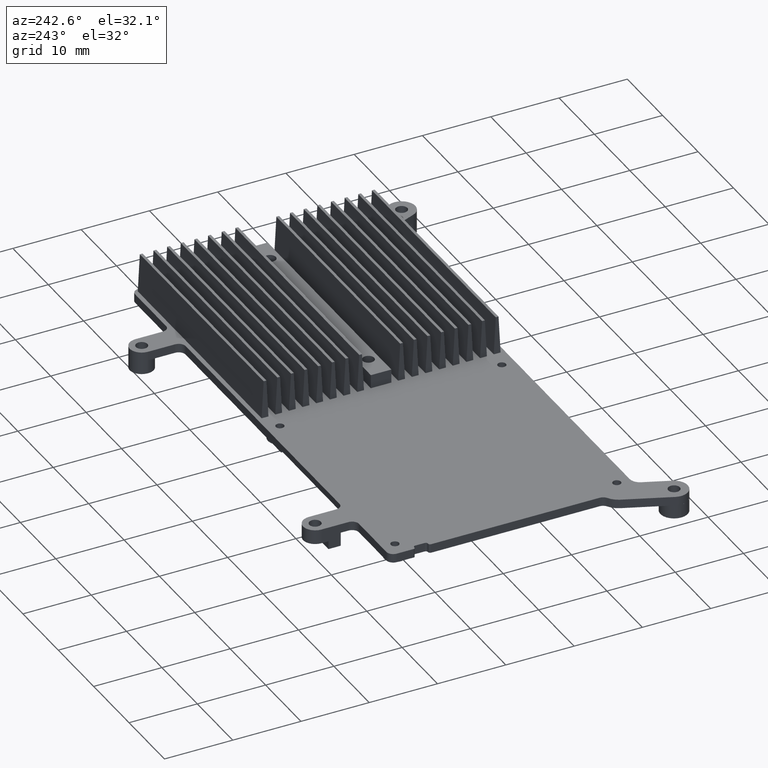
[diagram: clean part render]
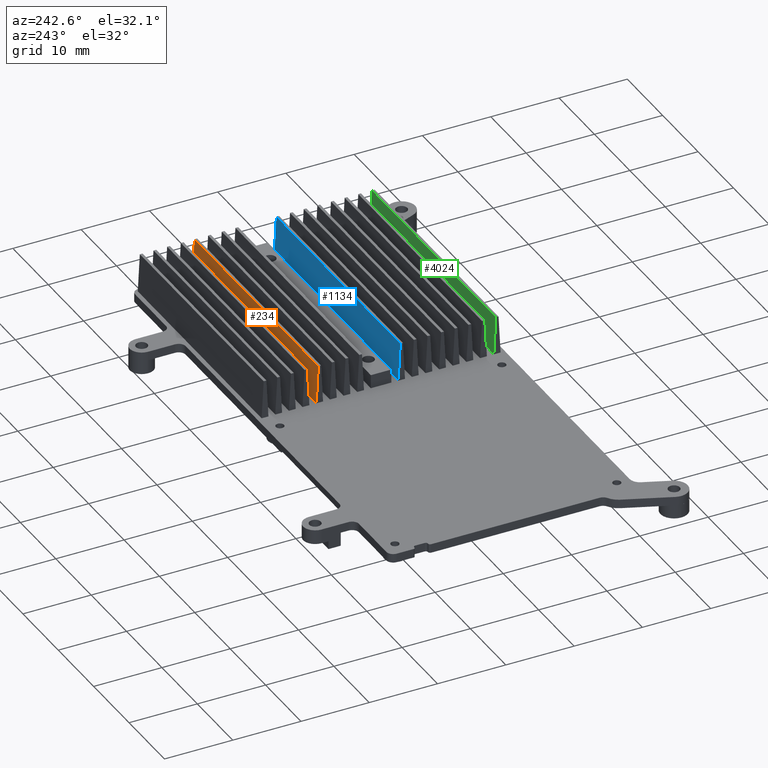
[diagram: same view with three faces highlighted in distinct colors, each labeled with its STEP entity id]
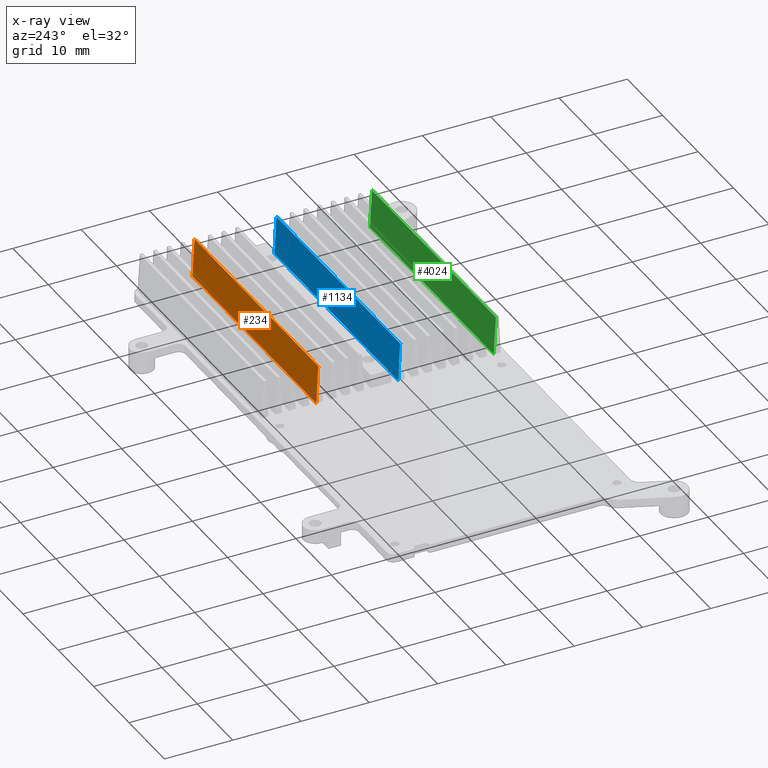
[diagram: x-ray of the same camera — body ghosted, the three highlighted faces saturated]
A machine part, auxiliary view with three faces highlighted in distinct colors.
The next image is the same camera in x-ray (body ghosted, the three faces saturated) — at least one of them is partly hidden behind the body in this view.
Their STEP definitions:

[orange] entity #234 — the highlighted planar face has unit normal (0, 0.9986, 0.0535).
#116 = PLANE ( 'NONE',  #2036 ) ;
#179 = CARTESIAN_POINT ( 'NONE',  ( 36.49940000000000100, 5.887719902459991800, -6.099999999999999600 ) ) ;
#234 = ADVANCED_FACE ( 'NONE', ( #3065 ), #116, .T. ) ;
#713 = DIRECTION ( 'NONE',  ( 0.0000000000000000000, -0.05349472137160941200, 0.9985681322700888900 ) ) ;
#722 = DIRECTION ( 'NONE',  ( 1.000000000000000000, 0.0000000000000000000, 0.0000000000000000000 ) ) ;
#862 = VECTOR ( 'NONE', #5511, 1000.000000000000100 ) ;
#969 = LINE ( 'NONE', #2581, #1634 ) ;
#998 = LINE ( 'NONE', #2120, #862 ) ;
#1005 = LINE ( 'NONE', #1148, #3931 ) ;
#1148 = CARTESIAN_POINT ( 'NONE',  ( 51.58500000000000100, 5.887719902459998900, -6.099999999999999600 ) ) ;
#1154 = CARTESIAN_POINT ( 'NONE',  ( 1.500599999999999500, 5.887719902459992700, -6.099999999999999600 ) ) ;
#1304 = ORIENTED_EDGE ( 'NONE', *, *, #1947, .T. ) ;
#1583 = VERTEX_POINT ( 'NONE', #179 ) ;
#1634 = VECTOR ( 'NONE', #3451, 1000.000000000000000 ) ;
#1743 = ORIENTED_EDGE ( 'NONE', *, *, #4475, .T. ) ;
#1947 = EDGE_CURVE ( 'NONE', #5244, #3544, #969, .T. ) ;
#2008 = CARTESIAN_POINT ( 'NONE',  ( 1.500599999999999900, 5.587719902459999900, -0.5000000000000000000 ) ) ;
#2036 = AXIS2_PLACEMENT_3D ( 'NONE', #3098, #3428, #5163 ) ;
#2120 = CARTESIAN_POINT ( 'NONE',  ( 36.49940000000000100, 5.587719902459999900, -0.5000000000000000000 ) ) ;
#2176 = EDGE_LOOP ( 'NONE', ( #2422, #3501, #1743, #1304 ) ) ;
#2422 = ORIENTED_EDGE ( 'NONE', *, *, #4567, .T. ) ;
#2581 = CARTESIAN_POINT ( 'NONE',  ( 1.000599999999999900, 5.587719902459999900, -0.5000000000000000000 ) ) ;
#3065 = FACE_OUTER_BOUND ( 'NONE', #2176, .T. ) ;
#3098 = CARTESIAN_POINT ( 'NONE',  ( 1.000599999999999900, 5.587719902459999900, -0.5000000000000000000 ) ) ;
#3428 = DIRECTION ( 'NONE',  ( 0.0000000000000000000, 0.9985681322700890000, 0.05349472137160941900 ) ) ;
#3451 = DIRECTION ( 'NONE',  ( 1.000000000000000000, 0.0000000000000000000, -0.0000000000000000000 ) ) ;
#3501 = ORIENTED_EDGE ( 'NONE', *, *, #4192, .F. ) ;
#3544 = VERTEX_POINT ( 'NONE', #4414 ) ;
#3583 = LINE ( 'NONE', #2008, #4053 ) ;
#3931 = VECTOR ( 'NONE', #722, 1000.000000000000000 ) ;
#4053 = VECTOR ( 'NONE', #713, 1000.000000000000100 ) ;
#4154 = CARTESIAN_POINT ( 'NONE',  ( 1.500600000000000200, 5.587719902459999900, -0.5000000000000000000 ) ) ;
#4192 = EDGE_CURVE ( 'NONE', #5258, #1583, #1005, .T. ) ;
#4414 = CARTESIAN_POINT ( 'NONE',  ( 36.49940000000000100, 5.587719902460000800, -0.5000000000000001100 ) ) ;
#4475 = EDGE_CURVE ( 'NONE', #5258, #5244, #3583, .T. ) ;
#4567 = EDGE_CURVE ( 'NONE', #3544, #1583, #998, .T. ) ;
#5163 = DIRECTION ( 'NONE',  ( 0.0000000000000000000, -0.05349472137160941200, 0.9985681322700888900 ) ) ;
#5244 = VERTEX_POINT ( 'NONE', #4154 ) ;
#5258 = VERTEX_POINT ( 'NONE', #1154 ) ;
#5511 = DIRECTION ( 'NONE',  ( -0.0000000000000000000, 0.05349472137160941200, -0.9985681322700888900 ) ) ;

[blue] entity #1134 — the highlighted planar face has unit normal (0, -0.9986, -0.0535).
#26 = CARTESIAN_POINT ( 'NONE',  ( 51.58500000000000100, -6.112280097539998500, -6.099999999999999600 ) ) ;
#303 = EDGE_CURVE ( 'NONE', #1627, #3840, #3452, .T. ) ;
#312 = PLANE ( 'NONE',  #5202 ) ;
#528 = LINE ( 'NONE', #1816, #1131 ) ;
#982 = DIRECTION ( 'NONE',  ( -0.0000000000000000000, -0.05349472137160941200, 0.9985681322700888900 ) ) ;
#1048 = VERTEX_POINT ( 'NONE', #2426 ) ;
#1131 = VECTOR ( 'NONE', #982, 1000.000000000000100 ) ;
#1134 = ADVANCED_FACE ( 'NONE', ( #3116 ), #312, .F. ) ;
#1185 = CARTESIAN_POINT ( 'NONE',  ( 1.000599999999999900, -6.112280097540001100, -6.099999999999999600 ) ) ;
#1250 = EDGE_CURVE ( 'NONE', #1048, #1627, #3391, .T. ) ;
#1277 = VECTOR ( 'NONE', #3001, 1000.000000000000000 ) ;
#1627 = VERTEX_POINT ( 'NONE', #3606 ) ;
#1816 = CARTESIAN_POINT ( 'NONE',  ( 36.49940000000000100, -6.112280097540001100, -6.099999999999999600 ) ) ;
#1866 = DIRECTION ( 'NONE',  ( 0.0000000000000000000, 0.05349472137160941200, -0.9985681322700888900 ) ) ;
#1948 = ORIENTED_EDGE ( 'NONE', *, *, #1250, .F. ) ;
#2062 = VECTOR ( 'NONE', #2191, 1000.000000000000000 ) ;
#2191 = DIRECTION ( 'NONE',  ( -1.000000000000000000, 0.0000000000000000000, -0.0000000000000000000 ) ) ;
#2229 = VERTEX_POINT ( 'NONE', #4090 ) ;
#2426 = CARTESIAN_POINT ( 'NONE',  ( 36.49940000000000100, -6.412280097539990300, -0.4999999999999990600 ) ) ;
#2537 = LINE ( 'NONE', #26, #1277 ) ;
#2720 = CARTESIAN_POINT ( 'NONE',  ( 1.500599999999999900, -6.112280097540001100, -6.099999999999999600 ) ) ;
#2926 = VECTOR ( 'NONE', #1866, 1000.000000000000100 ) ;
#2964 = EDGE_LOOP ( 'NONE', ( #1948, #3696, #3288, #4985 ) ) ;
#2981 = CARTESIAN_POINT ( 'NONE',  ( 1.500599999999998200, -6.112280097539999300, -6.099999999999999600 ) ) ;
#3001 = DIRECTION ( 'NONE',  ( 1.000000000000000000, 0.0000000000000000000, 0.0000000000000000000 ) ) ;
#3116 = FACE_OUTER_BOUND ( 'NONE', #2964, .T. ) ;
#3288 = ORIENTED_EDGE ( 'NONE', *, *, #3845, .F. ) ;
#3391 = LINE ( 'NONE', #5165, #2062 ) ;
#3452 = LINE ( 'NONE', #2720, #2926 ) ;
#3606 = CARTESIAN_POINT ( 'NONE',  ( 1.500600000000000200, -6.412280097539992100, -0.4999999999999988300 ) ) ;
#3678 = DIRECTION ( 'NONE',  ( 0.0000000000000000000, 0.05349472137160941200, -0.9985681322700888900 ) ) ;
#3696 = ORIENTED_EDGE ( 'NONE', *, *, #4856, .F. ) ;
#3840 = VERTEX_POINT ( 'NONE', #2981 ) ;
#3845 = EDGE_CURVE ( 'NONE', #3840, #2229, #2537, .T. ) ;
#4090 = CARTESIAN_POINT ( 'NONE',  ( 36.49940000000000100, -6.112280097539999300, -6.099999999999999600 ) ) ;
#4856 = EDGE_CURVE ( 'NONE', #2229, #1048, #528, .T. ) ;
#4985 = ORIENTED_EDGE ( 'NONE', *, *, #303, .F. ) ;
#5165 = CARTESIAN_POINT ( 'NONE',  ( 1.000599999999999900, -6.412280097539986700, -0.4999999999999987200 ) ) ;
#5202 = AXIS2_PLACEMENT_3D ( 'NONE', #1185, #5332, #3678 ) ;
#5332 = DIRECTION ( 'NONE',  ( 0.0000000000000000000, -0.9985681322700890000, -0.05349472137160941900 ) ) ;

[green] entity #4024 — the highlighted planar face has unit normal (0, -0.9986, -0.0535).
#165 = DIRECTION ( 'NONE',  ( 0.0000000000000000000, 0.05349472137160941200, -0.9985681322700888900 ) ) ;
#865 = CARTESIAN_POINT ( 'NONE',  ( 1.500600000000000200, -20.41228009753998800, -0.4999999999999990600 ) ) ;
#874 = VECTOR ( 'NONE', #2560, 1000.000000000000100 ) ;
#962 = CARTESIAN_POINT ( 'NONE',  ( 51.58500000000000100, -20.11228009753999800, -6.099999999999999600 ) ) ;
#1201 = CARTESIAN_POINT ( 'NONE',  ( 36.49940000000000100, -20.41228009753998400, -0.4999999999999988300 ) ) ;
#1270 = VECTOR ( 'NONE', #2207, 1000.000000000000000 ) ;
#1361 = VECTOR ( 'NONE', #3792, 1000.000000000000000 ) ;
#1410 = CARTESIAN_POINT ( 'NONE',  ( 1.000599999999999900, -20.11228009754000100, -6.099999999999999600 ) ) ;
#1474 = LINE ( 'NONE', #3588, #4708 ) ;
#1868 = ORIENTED_EDGE ( 'NONE', *, *, #2721, .F. ) ;
#1961 = ORIENTED_EDGE ( 'NONE', *, *, #4929, .F. ) ;
#2207 = DIRECTION ( 'NONE',  ( 1.000000000000000000, 0.0000000000000000000, 0.0000000000000000000 ) ) ;
#2400 = LINE ( 'NONE', #962, #1270 ) ;
#2560 = DIRECTION ( 'NONE',  ( -0.0000000000000000000, -0.05349472137160941200, 0.9985681322700888900 ) ) ;
#2599 = EDGE_LOOP ( 'NONE', ( #1868, #4552, #2838, #1961 ) ) ;
#2721 = EDGE_CURVE ( 'NONE', #3825, #3377, #4932, .T. ) ;
#2771 = VERTEX_POINT ( 'NONE', #4246 ) ;
#2838 = ORIENTED_EDGE ( 'NONE', *, *, #3994, .F. ) ;
#3377 = VERTEX_POINT ( 'NONE', #865 ) ;
#3588 = CARTESIAN_POINT ( 'NONE',  ( 1.500599999999999900, -20.11228009754000100, -6.099999999999999600 ) ) ;
#3792 = DIRECTION ( 'NONE',  ( -1.000000000000000000, 0.0000000000000000000, -0.0000000000000000000 ) ) ;
#3825 = VERTEX_POINT ( 'NONE', #1201 ) ;
#3875 = EDGE_CURVE ( 'NONE', #2771, #3825, #4517, .T. ) ;
#3994 = EDGE_CURVE ( 'NONE', #4930, #2771, #2400, .T. ) ;
#4024 = ADVANCED_FACE ( 'NONE', ( #5245 ), #5183, .F. ) ;
#4230 = CARTESIAN_POINT ( 'NONE',  ( 1.000599999999999900, -20.41228009753998400, -0.4999999999999987200 ) ) ;
#4246 = CARTESIAN_POINT ( 'NONE',  ( 36.49940000000000100, -20.11228009754000100, -6.099999999999999600 ) ) ;
#4517 = LINE ( 'NONE', #5029, #874 ) ;
#4552 = ORIENTED_EDGE ( 'NONE', *, *, #3875, .F. ) ;
#4702 = DIRECTION ( 'NONE',  ( 0.0000000000000000000, -0.9985681322700890000, -0.05349472137160941900 ) ) ;
#4708 = VECTOR ( 'NONE', #165, 1000.000000000000100 ) ;
#4903 = CARTESIAN_POINT ( 'NONE',  ( 1.500599999999998200, -20.11228009754000100, -6.099999999999999600 ) ) ;
#4929 = EDGE_CURVE ( 'NONE', #3377, #4930, #1474, .T. ) ;
#4930 = VERTEX_POINT ( 'NONE', #4903 ) ;
#4932 = LINE ( 'NONE', #4230, #1361 ) ;
#5029 = CARTESIAN_POINT ( 'NONE',  ( 36.49940000000000100, -20.11228009754000100, -6.099999999999999600 ) ) ;
#5145 = AXIS2_PLACEMENT_3D ( 'NONE', #1410, #4702, #5207 ) ;
#5183 = PLANE ( 'NONE',  #5145 ) ;
#5207 = DIRECTION ( 'NONE',  ( 0.0000000000000000000, 0.05349472137160941200, -0.9985681322700888900 ) ) ;
#5245 = FACE_OUTER_BOUND ( 'NONE', #2599, .T. ) ;